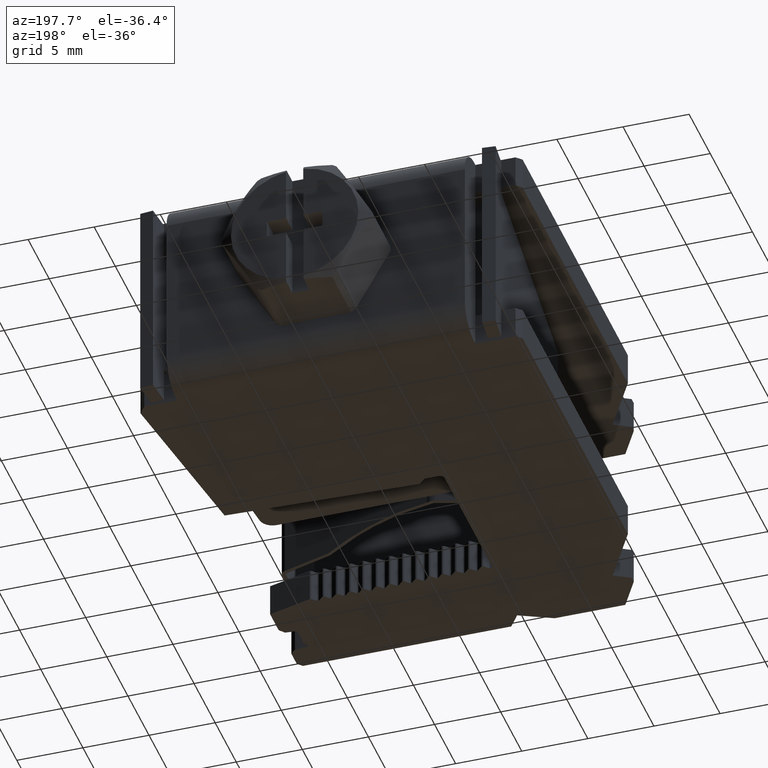
[diagram: clean part render]
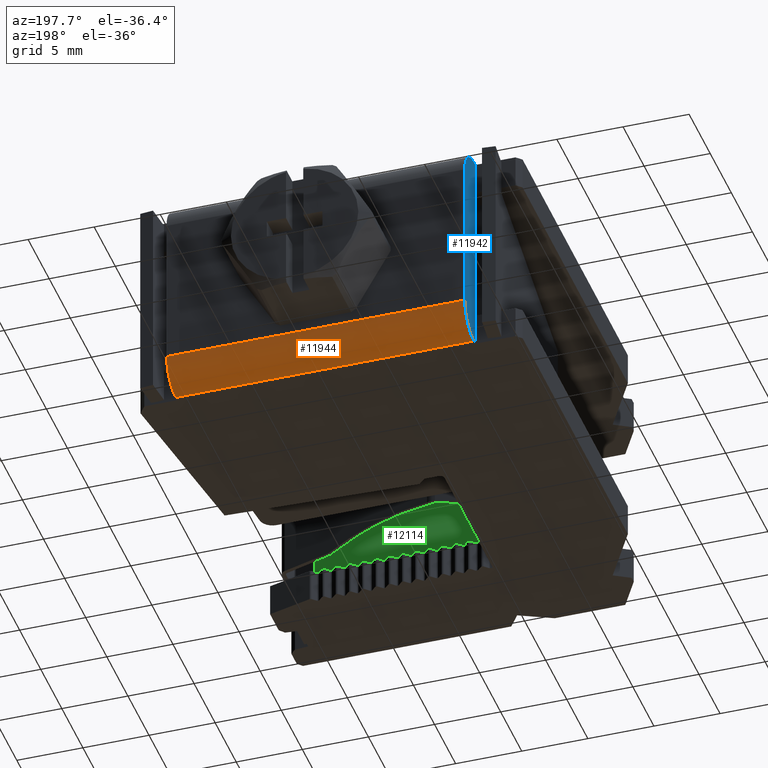
[diagram: same view with three faces highlighted in distinct colors, each labeled with its STEP entity id]
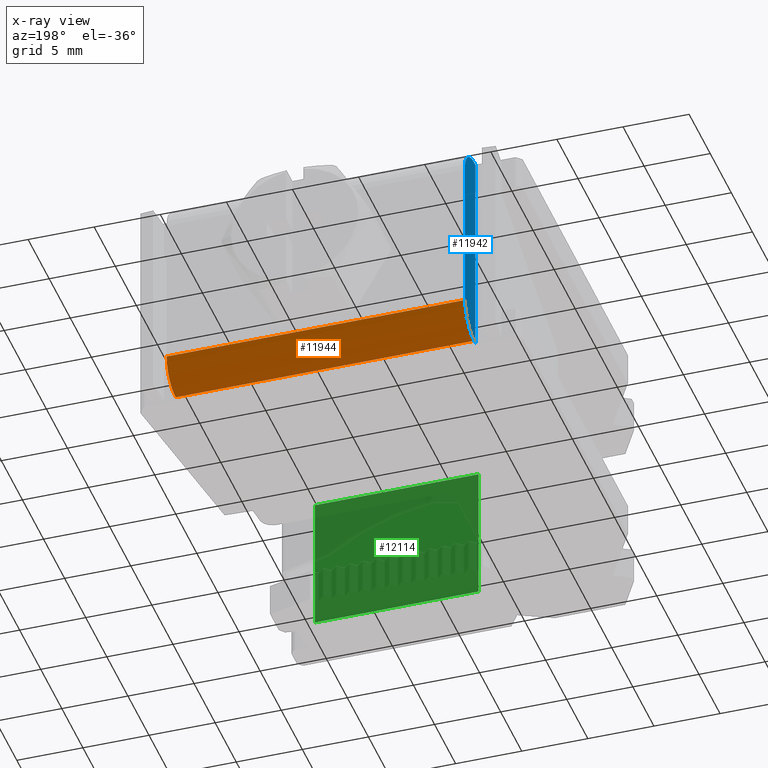
[diagram: x-ray of the same camera — body ghosted, the three highlighted faces saturated]
A machine part, auxiliary view with three faces highlighted in distinct colors.
The next image is the same camera in x-ray (body ghosted, the three faces saturated) — at least one of them is partly hidden behind the body in this view.
Their STEP definitions:

[orange] entity #11944 — the highlighted cylindrical surface (edge-blend (fillet) strip) has radius 2.15 mm, axis along (-1, -0, 0).
#1208 = VECTOR ( 'NONE', #2409, 1000.000000000000000 ) ;
#1264 = CIRCLE ( 'NONE', #1290, 2.149999999999999000 ) ;
#1290 = AXIS2_PLACEMENT_3D ( 'NONE', #1806, #1818, #1826 ) ;
#1311 = CIRCLE ( 'NONE', #1333, 2.149999999999999000 ) ;
#1333 = AXIS2_PLACEMENT_3D ( 'NONE', #1962, #1978, #1952 ) ;
#1345 = VECTOR ( 'NONE', #1970, 1000.000000000000000 ) ;
#1477 = AXIS2_PLACEMENT_3D ( 'NONE', #7051, #7053, #7054 ) ;
#1806 = CARTESIAN_POINT ( 'NONE',  ( 21.02627823012922200, 32.47833341090971300, -1.850000000000000100 ) ) ;
#1818 = DIRECTION ( 'NONE',  ( 1.000000000000000000, 2.426186679687842200E-016, -0.0000000000000000000 ) ) ;
#1826 = DIRECTION ( 'NONE',  ( 0.0000000000000000000, -1.000000000000000000, 0.0000000000000000000 ) ) ;
#1952 = DIRECTION ( 'NONE',  ( 2.017120320903264900E-016, -1.000000000000000000, 0.0000000000000000000 ) ) ;
#1957 = CARTESIAN_POINT ( 'NONE',  ( 0.2562782301292132500, 34.62833341090969700, -1.849999999999999200 ) ) ;
#1962 = CARTESIAN_POINT ( 'NONE',  ( -1.533721769870785200, 32.47833341090971300, -1.850000000000000100 ) ) ;
#1963 = LINE ( 'NONE', #1957, #1345 ) ;
#1970 = DIRECTION ( 'NONE',  ( -1.000000000000000000, -2.426186679687842200E-016, 0.0000000000000000000 ) ) ;
#1978 = DIRECTION ( 'NONE',  ( -1.000000000000000000, -2.426186679687842200E-016, 0.0000000000000000000 ) ) ;
#2377 = LINE ( 'NONE', #2391, #1208 ) ;
#2391 = CARTESIAN_POINT ( 'NONE',  ( 7.402759001598516500, 32.47833341090971300, -3.999999999999999100 ) ) ;
#2409 = DIRECTION ( 'NONE',  ( -1.000000000000000000, -2.426186679687842200E-016, 0.0000000000000000000 ) ) ;
#2717 = CARTESIAN_POINT ( 'NONE',  ( 21.02627823012922200, 34.62833341090970400, -1.849999999999999600 ) ) ;
#7035 = CYLINDRICAL_SURFACE ( 'NONE', #1477, 2.149999999999999000 ) ;
#7051 = CARTESIAN_POINT ( 'NONE',  ( 7.402759001598516500, 32.47833341090971300, -1.850000000000000100 ) ) ;
#7052 = FACE_OUTER_BOUND ( 'NONE', #9145, .T. ) ;
#7053 = DIRECTION ( 'NONE',  ( -1.000000000000000000, -2.426186679687842200E-016, 0.0000000000000000000 ) ) ;
#7054 = DIRECTION ( 'NONE',  ( 4.034240641806529900E-016, -1.000000000000000000, 0.0000000000000000000 ) ) ;
#8733 = CARTESIAN_POINT ( 'NONE',  ( -1.533721769870786100, 34.62833341090970400, -1.849999999999999200 ) ) ;
#8739 = CARTESIAN_POINT ( 'NONE',  ( -1.533721769870785200, 32.47833341090971300, -4.000000000000000000 ) ) ;
#8766 = CARTESIAN_POINT ( 'NONE',  ( 21.02627823012922200, 32.47833341090971300, -4.000000000000000000 ) ) ;
#9145 = EDGE_LOOP ( 'NONE', ( #10378, #10366, #10339, #10380 ) ) ;
#9624 = VERTEX_POINT ( 'NONE', #8766 ) ;
#9668 = VERTEX_POINT ( 'NONE', #8739 ) ;
#9677 = VERTEX_POINT ( 'NONE', #8733 ) ;
#9755 = VERTEX_POINT ( 'NONE', #2717 ) ;
#10339 = ORIENTED_EDGE ( 'NONE', *, *, #11757, .F. ) ;
#10366 = ORIENTED_EDGE ( 'NONE', *, *, #11805, .F. ) ;
#10378 = ORIENTED_EDGE ( 'NONE', *, *, #11801, .F. ) ;
#10380 = ORIENTED_EDGE ( 'NONE', *, *, #11662, .T. ) ;
#11662 = EDGE_CURVE ( 'NONE', #9624, #9668, #2377, .T. ) ;
#11757 = EDGE_CURVE ( 'NONE', #9624, #9755, #1264, .T. ) ;
#11801 = EDGE_CURVE ( 'NONE', #9677, #9668, #1311, .T. ) ;
#11805 = EDGE_CURVE ( 'NONE', #9755, #9677, #1963, .T. ) ;
#11944 = ADVANCED_FACE ( 'NONE', ( #7052 ), #7035, .T. ) ;

[blue] entity #11942 — the highlighted planar face has unit normal (-1, -0, 0).
#1188 = VECTOR ( 'NONE', #2677, 1000.000000000000000 ) ;
#1247 = VECTOR ( 'NONE', #1815, 1000.000000000000000 ) ;
#1291 = VECTOR ( 'NONE', #1796, 1000.000000000000000 ) ;
#1311 = CIRCLE ( 'NONE', #1333, 2.149999999999999000 ) ;
#1333 = AXIS2_PLACEMENT_3D ( 'NONE', #1962, #1978, #1952 ) ;
#1361 = VECTOR ( 'NONE', #2030, 1000.000000000000000 ) ;
#1372 = CIRCLE ( 'NONE', #1379, 2.149999999999999000 ) ;
#1374 = VECTOR ( 'NONE', #2833, 1000.000000000000000 ) ;
#1379 = AXIS2_PLACEMENT_3D ( 'NONE', #2855, #2864, #2856 ) ;
#1408 = VECTOR ( 'NONE', #2143, 1000.000000000000000 ) ;
#1479 = AXIS2_PLACEMENT_3D ( 'NONE', #7048, #7071, #7049 ) ;
#1796 = DIRECTION ( 'NONE',  ( 0.0000000000000000000, 0.0000000000000000000, 1.000000000000000000 ) ) ;
#1810 = LINE ( 'NONE', #1823, #1247 ) ;
#1815 = DIRECTION ( 'NONE',  ( 0.0000000000000000000, 0.0000000000000000000, 1.000000000000000000 ) ) ;
#1823 = CARTESIAN_POINT ( 'NONE',  ( -1.533721769870785700, 32.12833341090970400, -14.51688671857709400 ) ) ;
#1824 = LINE ( 'NONE', #1829, #1291 ) ;
#1829 = CARTESIAN_POINT ( 'NONE',  ( -1.533721769870785700, 32.12833341090971100, -14.51688671857709400 ) ) ;
#1952 = DIRECTION ( 'NONE',  ( 2.017120320903264900E-016, -1.000000000000000000, 0.0000000000000000000 ) ) ;
#1962 = CARTESIAN_POINT ( 'NONE',  ( -1.533721769870785200, 32.47833341090971300, -1.850000000000000100 ) ) ;
#1978 = DIRECTION ( 'NONE',  ( -1.000000000000000000, -2.426186679687842200E-016, 0.0000000000000000000 ) ) ;
#2030 = DIRECTION ( 'NONE',  ( -0.0000000000000000000, 0.0000000000000000000, 1.000000000000000000 ) ) ;
#2045 = LINE ( 'NONE', #2072, #1361 ) ;
#2072 = CARTESIAN_POINT ( 'NONE',  ( -1.533721769870785200, 32.12833341090971100, 12.00000000000000000 ) ) ;
#2100 = LINE ( 'NONE', #2148, #1408 ) ;
#2143 = DIRECTION ( 'NONE',  ( -4.770489558936222500E-016, 1.000000000000000000, -0.0000000000000000000 ) ) ;
#2148 = CARTESIAN_POINT ( 'NONE',  ( -1.533721769870785700, 32.12833341090971100, 12.00000000000000200 ) ) ;
#2645 = CARTESIAN_POINT ( 'NONE',  ( -1.533721769870785200, -3.669759337385609200, -4.000000000000000000 ) ) ;
#2677 = DIRECTION ( 'NONE',  ( 0.0000000000000000000, -1.000000000000000000, -0.0000000000000000000 ) ) ;
#2678 = LINE ( 'NONE', #2645, #1188 ) ;
#2689 = CARTESIAN_POINT ( 'NONE',  ( -1.533721769870785200, 32.12833341090971100, 12.00000000000000200 ) ) ;
#2727 = CARTESIAN_POINT ( 'NONE',  ( -1.533721769870786300, 32.47833341090970500, 12.00000000000000000 ) ) ;
#2833 = DIRECTION ( 'NONE',  ( -0.0000000000000000000, -0.0000000000000000000, -1.000000000000000000 ) ) ;
#2843 = LINE ( 'NONE', #2844, #1374 ) ;
#2844 = CARTESIAN_POINT ( 'NONE',  ( -1.533721769870786800, 34.62833341090970400, -14.51688671857709400 ) ) ;
#2855 = CARTESIAN_POINT ( 'NONE',  ( -1.533721769870786600, 32.47833341090970500, 9.850000000000001400 ) ) ;
#2856 = DIRECTION ( 'NONE',  ( -2.017120320903264900E-016, 1.000000000000000000, 0.0000000000000000000 ) ) ;
#2864 = DIRECTION ( 'NONE',  ( 1.000000000000000000, 2.426186679687842200E-016, 0.0000000000000000000 ) ) ;
#7047 = PLANE ( 'NONE',  #1479 ) ;
#7048 = CARTESIAN_POINT ( 'NONE',  ( -1.533721769870785700, 32.12833341090971100, -14.51688671857709400 ) ) ;
#7049 = DIRECTION ( 'NONE',  ( 4.770489558936222500E-016, -1.000000000000000000, 0.0000000000000000000 ) ) ;
#7060 = FACE_OUTER_BOUND ( 'NONE', #9153, .T. ) ;
#7071 = DIRECTION ( 'NONE',  ( -1.000000000000000000, -4.770489558936222500E-016, 0.0000000000000000000 ) ) ;
#8710 = CARTESIAN_POINT ( 'NONE',  ( -1.533721769870785200, 32.12833341090970400, -4.000000000000002700 ) ) ;
#8733 = CARTESIAN_POINT ( 'NONE',  ( -1.533721769870786100, 34.62833341090970400, -1.849999999999999200 ) ) ;
#8739 = CARTESIAN_POINT ( 'NONE',  ( -1.533721769870785200, 32.47833341090971300, -4.000000000000000000 ) ) ;
#8773 = CARTESIAN_POINT ( 'NONE',  ( -1.533721769870785200, 32.12833341090971100, -1.500000000000001300 ) ) ;
#8798 = CARTESIAN_POINT ( 'NONE',  ( -1.533721769870787000, 34.62833341090970400, 9.850000000000001400 ) ) ;
#8809 = CARTESIAN_POINT ( 'NONE',  ( -1.533721769870785500, 32.12833341090971100, 9.500000000000000000 ) ) ;
#9153 = EDGE_LOOP ( 'NONE', ( #9214, #9216, #9218, #9261, #9292, #9275, #9284, #9274 ) ) ;
#9214 = ORIENTED_EDGE ( 'NONE', *, *, #11761, .T. ) ;
#9216 = ORIENTED_EDGE ( 'NONE', *, *, #11828, .T. ) ;
#9218 = ORIENTED_EDGE ( 'NONE', *, *, #11860, .T. ) ;
#9261 = ORIENTED_EDGE ( 'NONE', *, *, #11898, .F. ) ;
#9274 = ORIENTED_EDGE ( 'NONE', *, *, #11768, .T. ) ;
#9275 = ORIENTED_EDGE ( 'NONE', *, *, #11801, .T. ) ;
#9284 = ORIENTED_EDGE ( 'NONE', *, *, #11717, .T. ) ;
#9292 = ORIENTED_EDGE ( 'NONE', *, *, #11895, .T. ) ;
#9614 = VERTEX_POINT ( 'NONE', #8710 ) ;
#9654 = VERTEX_POINT ( 'NONE', #8773 ) ;
#9668 = VERTEX_POINT ( 'NONE', #8739 ) ;
#9677 = VERTEX_POINT ( 'NONE', #8733 ) ;
#9688 = VERTEX_POINT ( 'NONE', #8798 ) ;
#9692 = VERTEX_POINT ( 'NONE', #8809 ) ;
#9722 = VERTEX_POINT ( 'NONE', #2689 ) ;
#9728 = VERTEX_POINT ( 'NONE', #2727 ) ;
#11717 = EDGE_CURVE ( 'NONE', #9668, #9614, #2678, .T. ) ;
#11761 = EDGE_CURVE ( 'NONE', #9654, #9692, #1824, .T. ) ;
#11768 = EDGE_CURVE ( 'NONE', #9614, #9654, #1810, .T. ) ;
#11801 = EDGE_CURVE ( 'NONE', #9677, #9668, #1311, .T. ) ;
#11828 = EDGE_CURVE ( 'NONE', #9692, #9722, #2045, .T. ) ;
#11860 = EDGE_CURVE ( 'NONE', #9722, #9728, #2100, .T. ) ;
#11895 = EDGE_CURVE ( 'NONE', #9688, #9677, #2843, .T. ) ;
#11898 = EDGE_CURVE ( 'NONE', #9688, #9728, #1372, .T. ) ;
#11942 = ADVANCED_FACE ( 'NONE', ( #7060 ), #7047, .T. ) ;

[green] entity #12114 — the highlighted planar face has unit normal (-0, -1, 0).
#682 = AXIS2_PLACEMENT_3D ( 'NONE', #7989, #7978, #7979 ) ;
#720 = VECTOR ( 'NONE', #3284, 1000.000000000000000 ) ;
#783 = VECTOR ( 'NONE', #3842, 1000.000000000000000 ) ;
#785 = VECTOR ( 'NONE', #3414, 1000.000000000000000 ) ;
#847 = VECTOR ( 'NONE', #4510, 1000.000000000000000 ) ;
#2802 = CARTESIAN_POINT ( 'NONE',  ( 8.533677572348258500, -0.1740000000087353100, -1.250000000000001100 ) ) ;
#2812 = CARTESIAN_POINT ( 'NONE',  ( 20.91677823012335200, -0.1740000000087722800, -1.250000000000000900 ) ) ;
#2819 = CARTESIAN_POINT ( 'NONE',  ( 8.533677572348258500, -0.1740000000087353100, 9.250000000000001800 ) ) ;
#3257 = CARTESIAN_POINT ( 'NONE',  ( 21.11677823012336600, -0.1740000000087736400, -1.250000000000001100 ) ) ;
#3272 = LINE ( 'NONE', #3257, #720 ) ;
#3284 = DIRECTION ( 'NONE',  ( 1.000000000000000000, -3.050182776871565900E-015, 0.0000000000000000000 ) ) ;
#3414 = DIRECTION ( 'NONE',  ( -1.000000000000000000, 3.050182776871565900E-015, -0.0000000000000000000 ) ) ;
#3426 = LINE ( 'NONE', #3461, #785 ) ;
#3461 = CARTESIAN_POINT ( 'NONE',  ( 21.11677823012336600, -0.1740000000087736400, 9.250000000000001800 ) ) ;
#3835 = CARTESIAN_POINT ( 'NONE',  ( 8.533677572348258500, -0.1740000000087352500, 11.75000000000000000 ) ) ;
#3842 = DIRECTION ( 'NONE',  ( -0.0000000000000000000, -0.0000000000000000000, -1.000000000000000000 ) ) ;
#3868 = LINE ( 'NONE', #3835, #783 ) ;
#4136 = EDGE_CURVE ( 'NONE', #10070, #10064, #3272, .T. ) ;
#4182 = EDGE_CURVE ( 'NONE', #9495, #10100, #3426, .T. ) ;
#4267 = EDGE_CURVE ( 'NONE', #10100, #10070, #3868, .T. ) ;
#4343 = EDGE_CURVE ( 'NONE', #9495, #10064, #4505, .T. ) ;
#4479 = CARTESIAN_POINT ( 'NONE',  ( 20.91677823012335200, -0.1740000000087718900, 11.75000000000000000 ) ) ;
#4505 = LINE ( 'NONE', #4479, #847 ) ;
#4510 = DIRECTION ( 'NONE',  ( -0.0000000000000000000, -0.0000000000000000000, -1.000000000000000000 ) ) ;
#7941 = FACE_OUTER_BOUND ( 'NONE', #9098, .T. ) ;
#7976 = PLANE ( 'NONE',  #682 ) ;
#7978 = DIRECTION ( 'NONE',  ( -3.050182776871565900E-015, -1.000000000000000000, 0.0000000000000000000 ) ) ;
#7979 = DIRECTION ( 'NONE',  ( 1.000000000000000000, -3.050182776871565900E-015, 0.0000000000000000000 ) ) ;
#7989 = CARTESIAN_POINT ( 'NONE',  ( 21.11677823012336600, -0.1740000000087736400, 11.75000000000000000 ) ) ;
#8632 = CARTESIAN_POINT ( 'NONE',  ( 20.91677823012335200, -0.1740000000087722800, 9.250000000000001800 ) ) ;
#9098 = EDGE_LOOP ( 'NONE', ( #11588, #11596, #11597, #11535 ) ) ;
#9495 = VERTEX_POINT ( 'NONE', #8632 ) ;
#10064 = VERTEX_POINT ( 'NONE', #2812 ) ;
#10070 = VERTEX_POINT ( 'NONE', #2802 ) ;
#10100 = VERTEX_POINT ( 'NONE', #2819 ) ;
#11535 = ORIENTED_EDGE ( 'NONE', *, *, #4343, .T. ) ;
#11588 = ORIENTED_EDGE ( 'NONE', *, *, #4136, .F. ) ;
#11596 = ORIENTED_EDGE ( 'NONE', *, *, #4267, .F. ) ;
#11597 = ORIENTED_EDGE ( 'NONE', *, *, #4182, .F. ) ;
#12114 = ADVANCED_FACE ( 'NONE', ( #7941 ), #7976, .F. ) ;